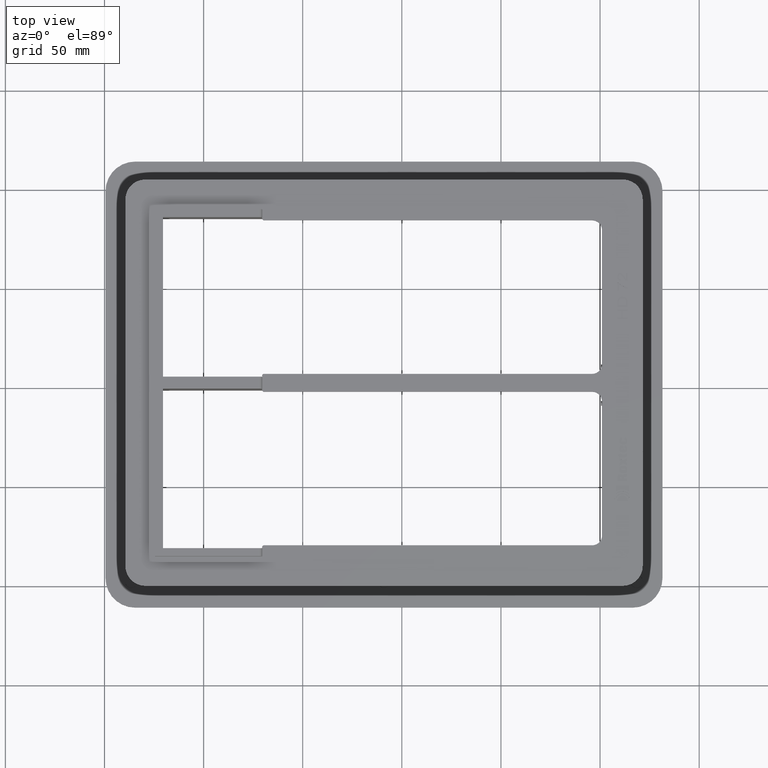
[diagram: clean part render]
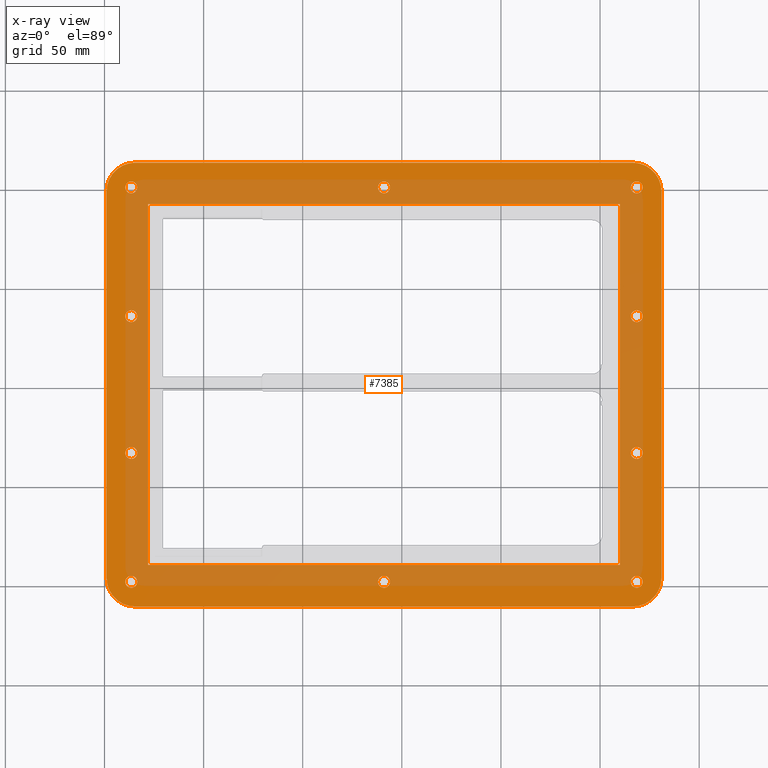
[diagram: x-ray — body ghosted, one internal face saturated and labeled with its STEP entity id]
A machine part, top view, then the same camera in x-ray: the body is ghosted and one INTERNAL B-rep face — a face not visible from any outside direction — is saturated and labeled: STEP entity #7385.
In plain terms, the highlighted planar face has unit normal (0, 0, 1).
Its self-contained STEP definition (entity closure, byte-faithful):
#468=FACE_BOUND('',#1321,.T.);
#469=FACE_BOUND('',#1322,.T.);
#470=FACE_BOUND('',#1323,.T.);
#471=FACE_BOUND('',#1324,.T.);
#472=FACE_BOUND('',#1325,.T.);
#473=FACE_BOUND('',#1326,.T.);
#474=FACE_BOUND('',#1327,.T.);
#475=FACE_BOUND('',#1328,.T.);
#476=FACE_BOUND('',#1329,.T.);
#477=FACE_BOUND('',#1330,.T.);
#478=FACE_BOUND('',#1331,.T.);
#578=PLANE('',#8215);
#894=FACE_OUTER_BOUND('',#1320,.T.);
#1320=EDGE_LOOP('',(#5672,#5673,#5674,#5675,#5676,#5677,#5678,#5679));
#1321=EDGE_LOOP('',(#5680,#5681,#5682,#5683));
#1322=EDGE_LOOP('',(#5684));
#1323=EDGE_LOOP('',(#5685));
#1324=EDGE_LOOP('',(#5686));
#1325=EDGE_LOOP('',(#5687));
#1326=EDGE_LOOP('',(#5688));
#1327=EDGE_LOOP('',(#5689));
#1328=EDGE_LOOP('',(#5690));
#1329=EDGE_LOOP('',(#5691));
#1330=EDGE_LOOP('',(#5692));
#1331=EDGE_LOOP('',(#5693));
#1773=LINE('',#11224,#2490);
#1777=LINE('',#11236,#2494);
#1781=LINE('',#11248,#2498);
#1785=LINE('',#11260,#2502);
#1789=LINE('',#11272,#2506);
#1792=LINE('',#11278,#2509);
#1795=LINE('',#11284,#2512);
#1798=LINE('',#11288,#2515);
#2490=VECTOR('',#9070,10.);
#2494=VECTOR('',#9082,10.);
#2498=VECTOR('',#9094,10.);
#2502=VECTOR('',#9106,10.);
#2506=VECTOR('',#9118,10.);
#2509=VECTOR('',#9123,10.);
#2512=VECTOR('',#9128,10.);
#2515=VECTOR('',#9133,10.);
#3190=CIRCLE('',#8167,14.5);
#3192=CIRCLE('',#8171,14.5);
#3194=CIRCLE('',#8175,14.5);
#3196=CIRCLE('',#8179,14.5);
#3207=CIRCLE('',#8196,3.);
#3208=CIRCLE('',#8198,3.);
#3209=CIRCLE('',#8200,3.);
#3210=CIRCLE('',#8202,3.);
#3211=CIRCLE('',#8204,3.);
#3212=CIRCLE('',#8206,3.);
#3213=CIRCLE('',#8208,3.);
#3214=CIRCLE('',#8210,3.);
#3215=CIRCLE('',#8212,3.);
#3216=CIRCLE('',#8214,3.);
#3456=VERTEX_POINT('',#11221);
#3457=VERTEX_POINT('',#11223);
#3459=VERTEX_POINT('',#11229);
#3461=VERTEX_POINT('',#11235);
#3463=VERTEX_POINT('',#11241);
#3465=VERTEX_POINT('',#11247);
#3467=VERTEX_POINT('',#11253);
#3469=VERTEX_POINT('',#11259);
#3472=VERTEX_POINT('',#11269);
#3473=VERTEX_POINT('',#11271);
#3475=VERTEX_POINT('',#11277);
#3477=VERTEX_POINT('',#11283);
#3488=VERTEX_POINT('',#11311);
#3489=VERTEX_POINT('',#11315);
#3490=VERTEX_POINT('',#11319);
#3491=VERTEX_POINT('',#11323);
#3492=VERTEX_POINT('',#11327);
#3493=VERTEX_POINT('',#11331);
#3494=VERTEX_POINT('',#11335);
#3495=VERTEX_POINT('',#11339);
#3496=VERTEX_POINT('',#11343);
#3497=VERTEX_POINT('',#11347);
#4249=EDGE_CURVE('',#3457,#3456,#1773,.T.);
#4252=EDGE_CURVE('',#3459,#3457,#3190,.T.);
#4255=EDGE_CURVE('',#3461,#3459,#1777,.T.);
#4258=EDGE_CURVE('',#3463,#3461,#3192,.T.);
#4261=EDGE_CURVE('',#3465,#3463,#1781,.T.);
#4264=EDGE_CURVE('',#3467,#3465,#3194,.T.);
#4267=EDGE_CURVE('',#3469,#3467,#1785,.T.);
#4270=EDGE_CURVE('',#3456,#3469,#3196,.T.);
#4273=EDGE_CURVE('',#3473,#3472,#1789,.T.);
#4276=EDGE_CURVE('',#3475,#3473,#1792,.T.);
#4279=EDGE_CURVE('',#3477,#3475,#1795,.T.);
#4282=EDGE_CURVE('',#3472,#3477,#1798,.T.);
#4293=EDGE_CURVE('',#3488,#3488,#3207,.T.);
#4295=EDGE_CURVE('',#3489,#3489,#3208,.T.);
#4297=EDGE_CURVE('',#3490,#3490,#3209,.T.);
#4299=EDGE_CURVE('',#3491,#3491,#3210,.T.);
#4301=EDGE_CURVE('',#3492,#3492,#3211,.T.);
#4303=EDGE_CURVE('',#3493,#3493,#3212,.T.);
#4305=EDGE_CURVE('',#3494,#3494,#3213,.T.);
#4307=EDGE_CURVE('',#3495,#3495,#3214,.T.);
#4309=EDGE_CURVE('',#3496,#3496,#3215,.T.);
#4311=EDGE_CURVE('',#3497,#3497,#3216,.T.);
#5672=ORIENTED_EDGE('',*,*,#4261,.T.);
#5673=ORIENTED_EDGE('',*,*,#4258,.T.);
#5674=ORIENTED_EDGE('',*,*,#4255,.T.);
#5675=ORIENTED_EDGE('',*,*,#4252,.T.);
#5676=ORIENTED_EDGE('',*,*,#4249,.T.);
#5677=ORIENTED_EDGE('',*,*,#4270,.T.);
#5678=ORIENTED_EDGE('',*,*,#4267,.T.);
#5679=ORIENTED_EDGE('',*,*,#4264,.T.);
#5680=ORIENTED_EDGE('',*,*,#4279,.T.);
#5681=ORIENTED_EDGE('',*,*,#4276,.T.);
#5682=ORIENTED_EDGE('',*,*,#4273,.T.);
#5683=ORIENTED_EDGE('',*,*,#4282,.T.);
#5684=ORIENTED_EDGE('',*,*,#4293,.T.);
#5685=ORIENTED_EDGE('',*,*,#4295,.T.);
#5686=ORIENTED_EDGE('',*,*,#4297,.T.);
#5687=ORIENTED_EDGE('',*,*,#4299,.T.);
#5688=ORIENTED_EDGE('',*,*,#4301,.T.);
#5689=ORIENTED_EDGE('',*,*,#4303,.T.);
#5690=ORIENTED_EDGE('',*,*,#4305,.T.);
#5691=ORIENTED_EDGE('',*,*,#4307,.T.);
#5692=ORIENTED_EDGE('',*,*,#4309,.T.);
#5693=ORIENTED_EDGE('',*,*,#4311,.T.);
#7385=ADVANCED_FACE('',(#894,#468,#469,#470,#471,#472,#473,#474,#475,#476,
#477,#478),#578,.T.);
#8167=AXIS2_PLACEMENT_3D('',#11230,#9076,#9077);
#8171=AXIS2_PLACEMENT_3D('',#11242,#9088,#9089);
#8175=AXIS2_PLACEMENT_3D('',#11254,#9100,#9101);
#8179=AXIS2_PLACEMENT_3D('',#11264,#9112,#9113);
#8196=AXIS2_PLACEMENT_3D('',#11312,#9158,#9159);
#8198=AXIS2_PLACEMENT_3D('',#11316,#9163,#9164);
#8200=AXIS2_PLACEMENT_3D('',#11320,#9168,#9169);
#8202=AXIS2_PLACEMENT_3D('',#11324,#9173,#9174);
#8204=AXIS2_PLACEMENT_3D('',#11328,#9178,#9179);
#8206=AXIS2_PLACEMENT_3D('',#11332,#9183,#9184);
#8208=AXIS2_PLACEMENT_3D('',#11336,#9188,#9189);
#8210=AXIS2_PLACEMENT_3D('',#11340,#9193,#9194);
#8212=AXIS2_PLACEMENT_3D('',#11344,#9198,#9199);
#8214=AXIS2_PLACEMENT_3D('',#11348,#9203,#9204);
#8215=AXIS2_PLACEMENT_3D('',#11350,#9206,#9207);
#9070=DIRECTION('',(-4.55476112666731E-16,-1.,0.));
#9076=DIRECTION('center_axis',(0.,0.,1.));
#9077=DIRECTION('ref_axis',(0.,-1.,0.));
#9082=DIRECTION('',(-1.,0.,0.));
#9088=DIRECTION('center_axis',(0.,0.,1.));
#9089=DIRECTION('ref_axis',(-1.,0.,0.));
#9094=DIRECTION('',(3.64380890133385E-16,1.,0.));
#9100=DIRECTION('center_axis',(0.,0.,1.));
#9101=DIRECTION('ref_axis',(0.,1.,0.));
#9106=DIRECTION('',(1.,1.41542377641454E-16,0.));
#9112=DIRECTION('center_axis',(0.,0.,1.));
#9113=DIRECTION('ref_axis',(1.,0.,0.));
#9118=DIRECTION('',(-3.99582686840626E-13,1.,0.));
#9123=DIRECTION('',(-1.,-3.05787141639689E-13,0.));
#9128=DIRECTION('',(-1.95204048285679E-16,-1.,0.));
#9133=DIRECTION('',(1.,-7.46368419916026E-17,0.));
#9158=DIRECTION('center_axis',(0.,0.,-1.));
#9159=DIRECTION('ref_axis',(1.,0.,0.));
#9163=DIRECTION('center_axis',(0.,0.,-1.));
#9164=DIRECTION('ref_axis',(1.,0.,0.));
#9168=DIRECTION('center_axis',(0.,0.,-1.));
#9169=DIRECTION('ref_axis',(1.,0.,0.));
#9173=DIRECTION('center_axis',(0.,0.,-1.));
#9174=DIRECTION('ref_axis',(1.,0.,0.));
#9178=DIRECTION('center_axis',(0.,0.,-1.));
#9179=DIRECTION('ref_axis',(1.,0.,0.));
#9183=DIRECTION('center_axis',(0.,0.,-1.));
#9184=DIRECTION('ref_axis',(1.,0.,0.));
#9188=DIRECTION('center_axis',(0.,0.,-1.));
#9189=DIRECTION('ref_axis',(1.,0.,0.));
#9193=DIRECTION('center_axis',(0.,0.,-1.));
#9194=DIRECTION('ref_axis',(1.,0.,0.));
#9198=DIRECTION('center_axis',(0.,0.,-1.));
#9199=DIRECTION('ref_axis',(1.,0.,0.));
#9203=DIRECTION('center_axis',(0.,0.,-1.));
#9204=DIRECTION('ref_axis',(1.,0.,0.));
#9206=DIRECTION('center_axis',(0.,0.,1.));
#9207=DIRECTION('ref_axis',(1.,0.,0.));
#11221=CARTESIAN_POINT('',(-140.,-97.5,1.5));
#11223=CARTESIAN_POINT('',(-140.,97.5,1.5));
#11224=CARTESIAN_POINT('',(-140.,48.75,1.5));
#11229=CARTESIAN_POINT('',(-125.5,112.,1.5));
#11230=CARTESIAN_POINT('Origin',(-125.5,97.5,1.5));
#11235=CARTESIAN_POINT('',(125.5,112.,1.5));
#11236=CARTESIAN_POINT('',(62.75,112.,1.5));
#11241=CARTESIAN_POINT('',(140.,97.5,1.5));
#11242=CARTESIAN_POINT('Origin',(125.5,97.5,1.5));
#11247=CARTESIAN_POINT('',(140.,-97.5,1.5));
#11248=CARTESIAN_POINT('',(140.,-48.75,1.5));
#11253=CARTESIAN_POINT('',(125.5,-112.,1.5));
#11254=CARTESIAN_POINT('Origin',(125.5,-97.5,1.5));
#11259=CARTESIAN_POINT('',(-125.5,-112.,1.5));
#11260=CARTESIAN_POINT('',(-62.75,-112.,1.5));
#11264=CARTESIAN_POINT('Origin',(-125.5,-97.5,1.5));
#11269=CARTESIAN_POINT('',(-119.000000000044,91.0000000000291,1.5));
#11271=CARTESIAN_POINT('',(-118.999999999971,-91.0000000001019,1.5));
#11272=CARTESIAN_POINT('',(-118.999999999989,-45.5000000000747,1.5));
#11277=CARTESIAN_POINT('',(118.999999999971,-91.0000000000291,1.5));
#11278=CARTESIAN_POINT('',(59.4999999999994,-91.0000000000473,1.5));
#11283=CARTESIAN_POINT('',(118.999999999971,91.0000000000291,1.5));
#11284=CARTESIAN_POINT('',(118.999999999971,45.5000000000145,1.5));
#11288=CARTESIAN_POINT('',(-59.5000000000218,91.0000000000291,1.5));
#11311=CARTESIAN_POINT('',(-130.5,34.5,1.49999999999999));
#11312=CARTESIAN_POINT('Origin',(-127.5,34.5,1.49999999999999));
#11315=CARTESIAN_POINT('',(124.5,-34.5,1.49999999999999));
#11316=CARTESIAN_POINT('Origin',(127.5,-34.5,1.49999999999999));
#11319=CARTESIAN_POINT('',(-130.5,-99.5,1.49999999999999));
#11320=CARTESIAN_POINT('Origin',(-127.5,-99.5,1.49999999999999));
#11323=CARTESIAN_POINT('',(124.5,-99.5,1.49999999999999));
#11324=CARTESIAN_POINT('Origin',(127.5,-99.5,1.49999999999999));
#11327=CARTESIAN_POINT('',(-3.,99.5,1.49999999999999));
#11328=CARTESIAN_POINT('Origin',(0.,99.5,1.49999999999999));
#11331=CARTESIAN_POINT('',(124.5,99.5,1.49999999999999));
#11332=CARTESIAN_POINT('Origin',(127.5,99.5,1.49999999999999));
#11335=CARTESIAN_POINT('',(-3.,-99.5,1.49999999999999));
#11336=CARTESIAN_POINT('Origin',(0.,-99.5,1.49999999999999));
#11339=CARTESIAN_POINT('',(-130.5,99.5,1.49999999999999));
#11340=CARTESIAN_POINT('Origin',(-127.5,99.5,1.49999999999999));
#11343=CARTESIAN_POINT('',(124.5,34.5,1.49999999999999));
#11344=CARTESIAN_POINT('Origin',(127.5,34.5,1.49999999999999));
#11347=CARTESIAN_POINT('',(-130.5,-34.5,1.49999999999999));
#11348=CARTESIAN_POINT('Origin',(-127.5,-34.5,1.49999999999999));
#11350=CARTESIAN_POINT('Origin',(0.,0.,1.5));